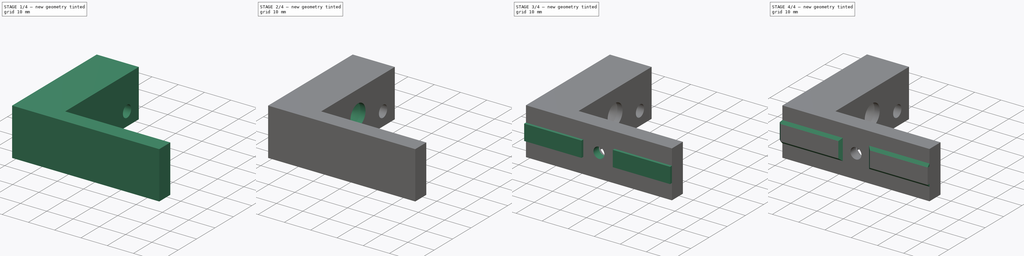
[diagram: build sequence overview — one tinted view per stage of 4, left to right]
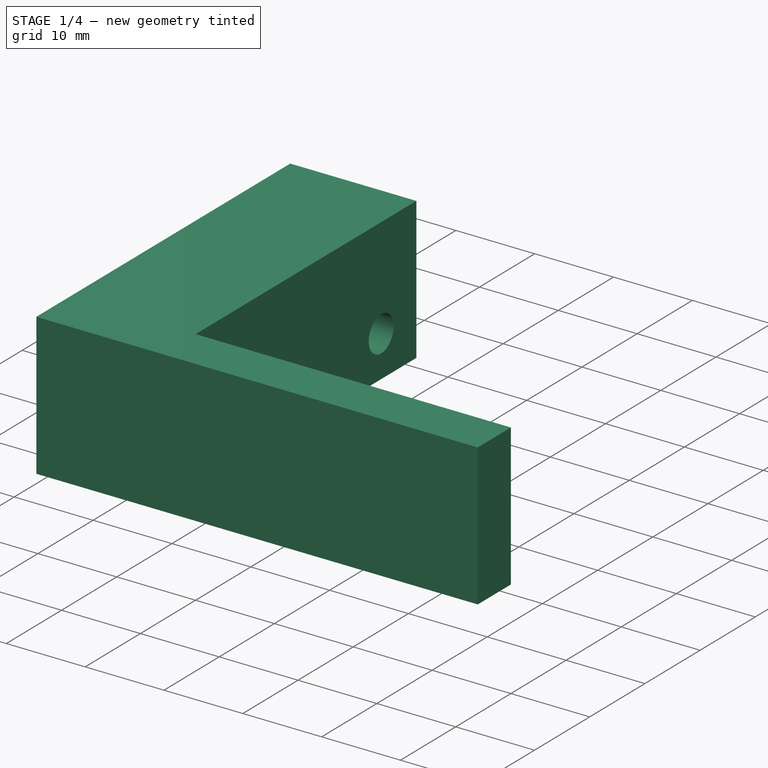
[diagram: stage 1 of 4 — iso view after this stage's code; geometry added in this stage tinted green]
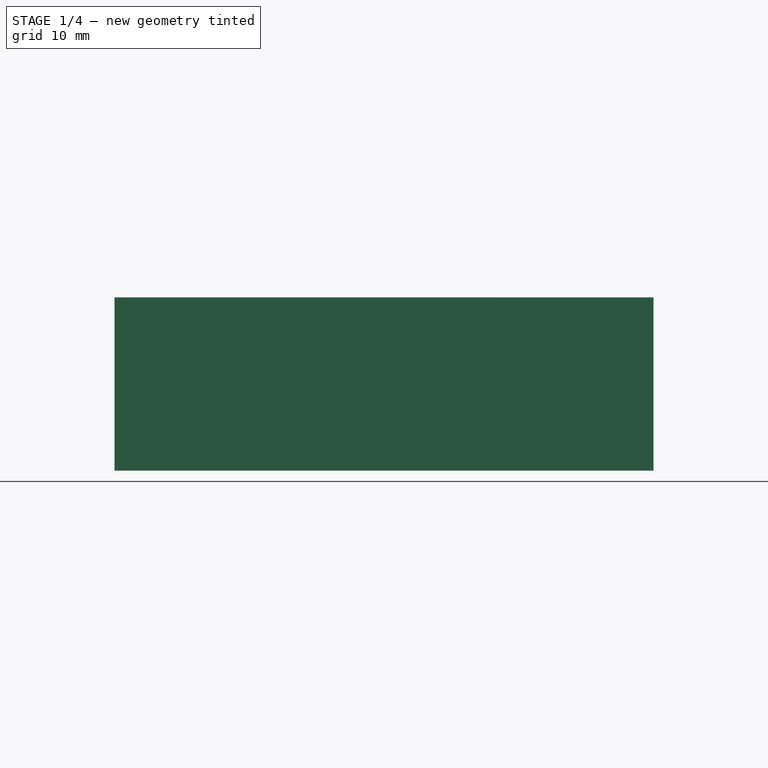
[diagram: stage 1 of 4 — front view after this stage's code; geometry added in this stage tinted green]
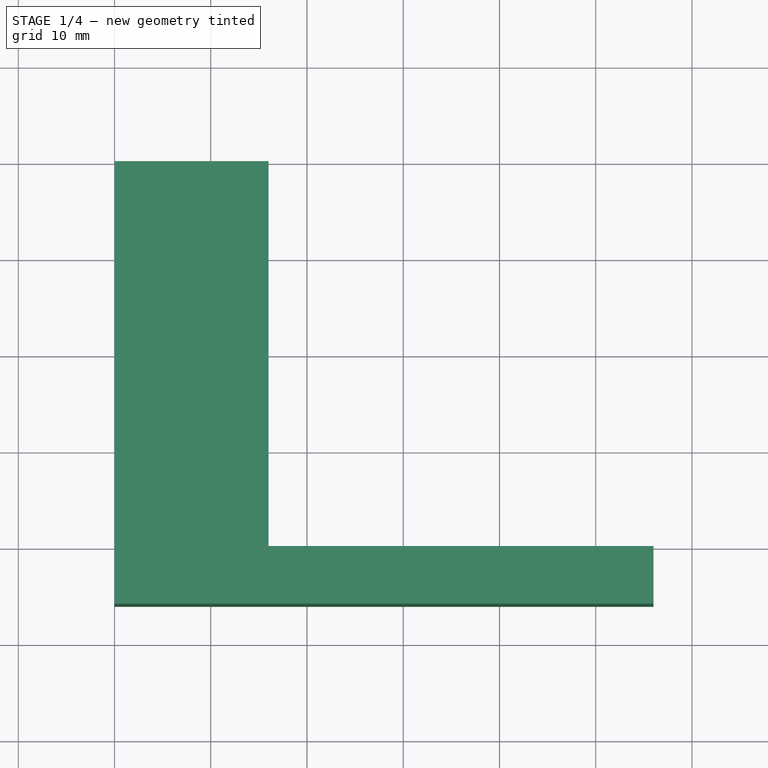
[diagram: stage 1 of 4 — top view after this stage's code; geometry added in this stage tinted green]
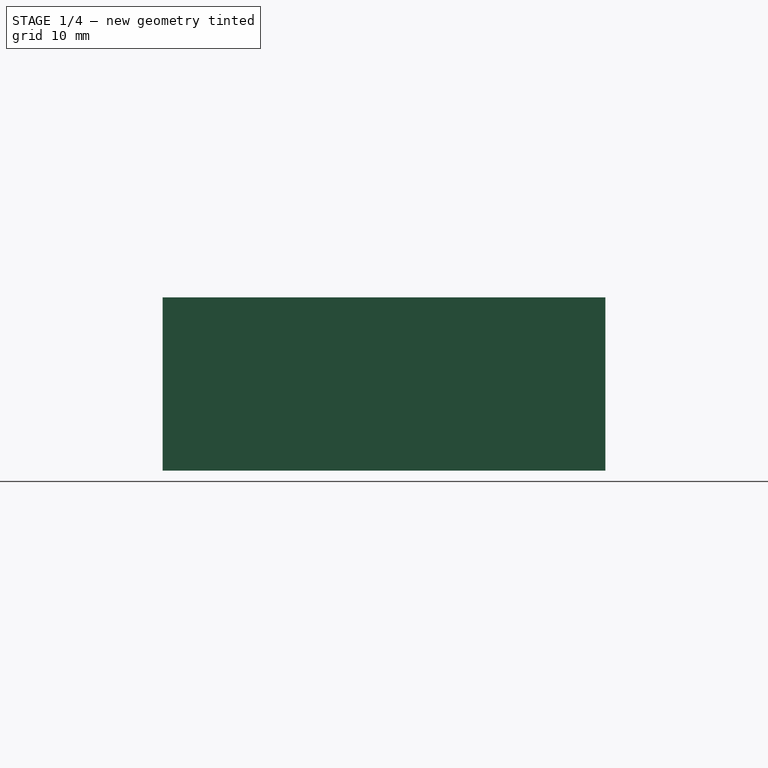
[diagram: stage 1 of 4 — right view after this stage's code; geometry added in this stage tinted green]
FCSTD DOCUMENT  (FreeCAD 0.19R24365 (Git))
Label: ender_5_plus-arm_support v.2
License: All rights reserved
LicenseURL: http://en.wikipedia.org/wiki/All_rights_reserved
objects: Sketcher::SketchObject×8, PartDesign::Pad×4, PartDesign::Pocket×4, PartDesign::Hole×2, Spreadsheet::Sheet×1, PartDesign::Chamfer×1, PartDesign::Body×1
note: 31 computed .brp shape members not serialized (recipe doc carries the construction recipe); baked Part::Feature solids carry a one-line shape summary decoded from their .brp

FEATURE [Sketcher::SketchObject] Sketch
  FullyConstrained = true
  MapMode = 5
  Placement = pos=(0,0,0) rot=(0.57735,0.57735,0.57735;2.0944rad)
  Support = -> [YZ_Plane]
  expr: Constraints[8] = Spreadsheet.base_llargada
  sketch-geometry (4):
    g0: LineSegment StartX=-20 StartY=9 StartZ=0 EndX=20 EndY=9 EndZ=0
    g1: LineSegment StartX=20 StartY=9 StartZ=0 EndX=20 EndY=-9 EndZ=0
    g2: LineSegment StartX=20 StartY=-9 StartZ=0 EndX=-20 EndY=-9 EndZ=0
    g3: LineSegment StartX=-20 StartY=-9 StartZ=0 EndX=-20 EndY=9 EndZ=0
  constraints (11):
    c: Coincident(g0,g1)
    c: Coincident(g1,g2)
    c: Coincident(g2,g3)
    c: Coincident(g3,g0)
    c: Horizontal(g0)
    c: Horizontal(g2)
    c: Vertical(g1)
    c: Vertical(g3)
    c: DistanceX(g0,g0) = 40
    c: Symmetric(g0,g1,g-1)
    c: DistanceY(g1,g1) = 18
FEATURE [PartDesign::Pad] Pad
  Direction = (1,1,1)
  Length = 16
  Length2 = 100
  Placement = pos=(0,0,0) rot=(0.57735,0.57735,0.57735;2.0944rad)
  Profile = -> Sketch
  Type = 0
  expr: Length = Spreadsheet.base_amplada + Spreadsheet.base_prolongacio
FEATURE [Sketcher::SketchObject] Sketch001
  FullyConstrained = true
  MapMode = 5
  Placement = pos=(16,-7.1e-15,5.3e-15) rot=(0.57735,0.57735,0.57735;2.0944rad)
  Support = -> [Pad]
  expr: Constraints[3] = Spreadsheet.forat_separacio
  expr: Constraints[4] = 1.7 - 4 - 1.5
  expr: Constraints[0] = Spreadsheet.forat_inserts
  sketch-geometry (2):
    g0: Circle CenterX=-13.625 CenterY=-3.8 CenterZ=0 NormalX=0 NormalY=0 NormalZ=1 AngleXU=0 Radius=2.25
    g1: Circle CenterX=13.625 CenterY=-3.8 CenterZ=0 NormalX=0 NormalY=0 NormalZ=1 AngleXU=0 Radius=2.25
  constraints (5):
    c: Diameter(g0) = 4.5
    c: Equal(g0,g1)
    c: Symmetric(g0,g1,g-2)
    c: DistanceX(g0,g1) = 27.25
    c: DistanceY(g-1,g0) = -3.8
FEATURE [PartDesign::Pocket] Pocket
  BaseFeature = -> Pad
  Length = 5
  Length2 = 100
  Placement = pos=(0,0,0) rot=(0.57735,0.57735,0.57735;2.0944rad)
  Profile = -> Sketch001
  Type = 0
FEATURE [Sketcher::SketchObject] Sketch002
  ExternalGeometry = -> [Pocket]
  FullyConstrained = true
  MapMode = 5
  Placement = pos=(-8.9e-15,-20,1.33e-14) rot=(0.57735,0.57735,-0.57735;2.0944rad)
  Support = -> [Pocket]
  expr: Constraints[9] = Spreadsheet.base_llargada + Spreadsheet.base_amplada + Spreadsheet.base_prolongacio
  sketch-geometry (4):
    g0: LineSegment StartX=-9 StartY=0 StartZ=0 EndX=9 EndY=1.24e-14 EndZ=0
    g1: LineSegment StartX=9 StartY=1.24e-14 StartZ=0 EndX=9 EndY=56 EndZ=0
    g2: LineSegment StartX=9 StartY=56 StartZ=0 EndX=-9 EndY=56 EndZ=0
    g3: LineSegment StartX=-9 StartY=56 StartZ=0 EndX=-9 EndY=0 EndZ=0
  constraints (10):
    c: Coincident(g0,g1)
    c: Coincident(g1,g2)
    c: Coincident(g2,g3)
    c: Coincident(g3,g0)
    c: Horizontal(g2)
    c: Vertical(g1)
    c: Vertical(g3)
    c: Coincident(g0,g-4)
    c: Coincident(g0,g-4)
    c: DistanceY(g1,g1) = 56
FEATURE [PartDesign::Pad] Pad001
  BaseFeature = -> Pocket
  Direction = (1,1,1)
  Length = 6
  Length2 = 100
  Placement = pos=(0,0,0) rot=(0.57735,0.57735,0.57735;2.0944rad)
  Profile = -> Sketch002
  Type = 0
  expr: Length = Spreadsheet.base_amplada
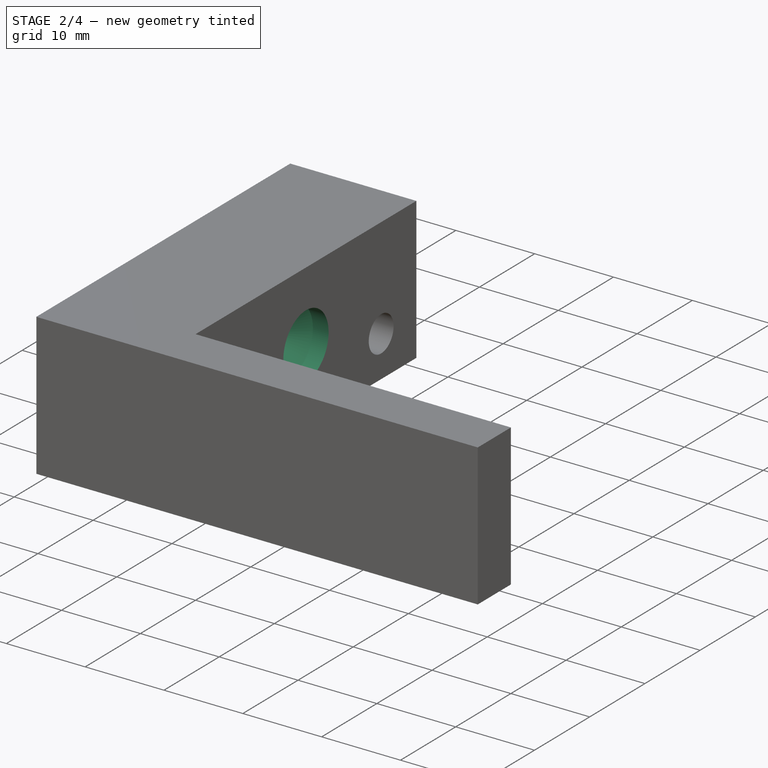
[diagram: stage 2 of 4 — iso view after this stage's code; geometry added in this stage tinted green]
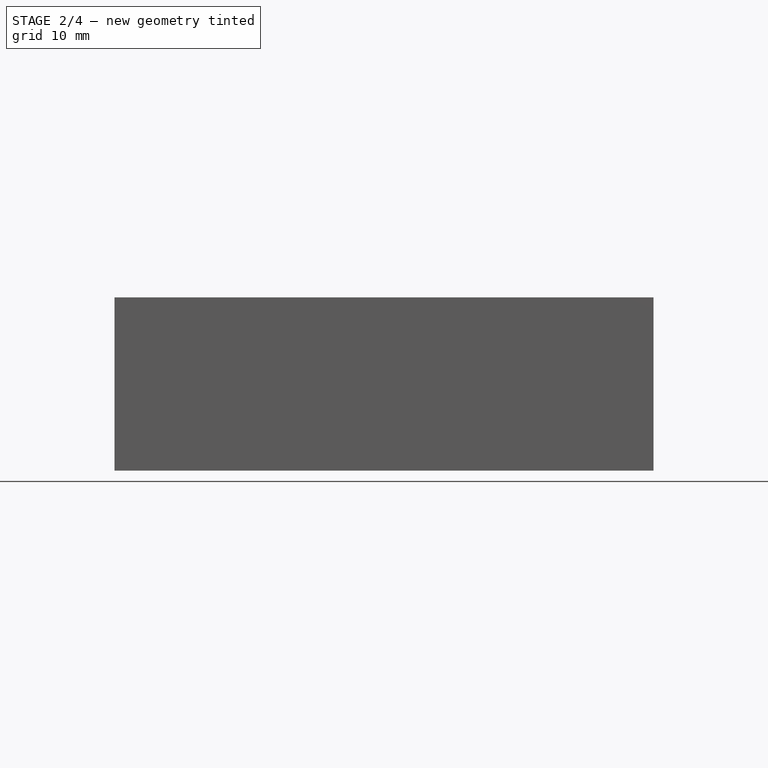
[diagram: stage 2 of 4 — front view after this stage's code; geometry added in this stage tinted green]
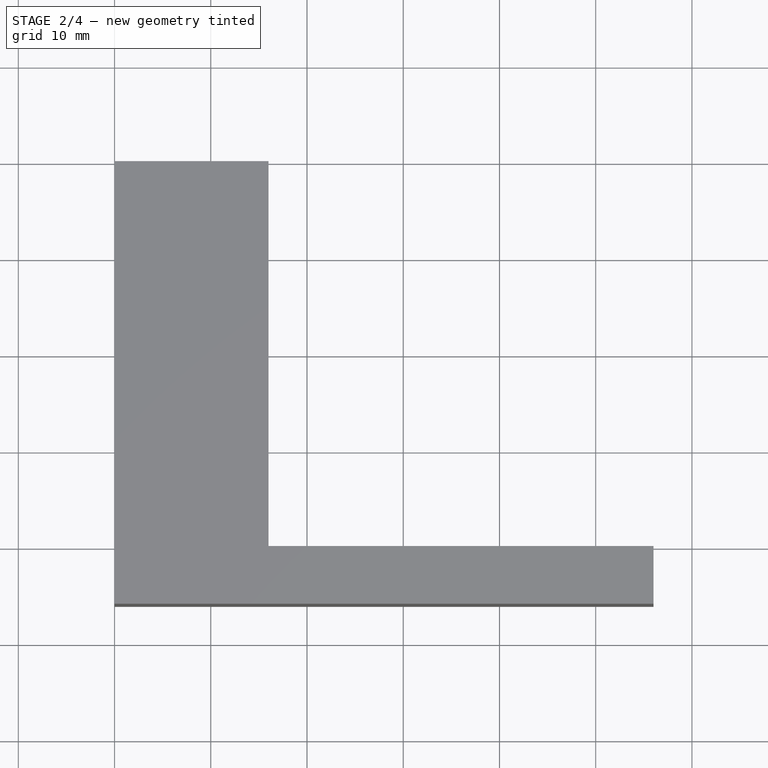
[diagram: stage 2 of 4 — top view after this stage's code; geometry added in this stage tinted green]
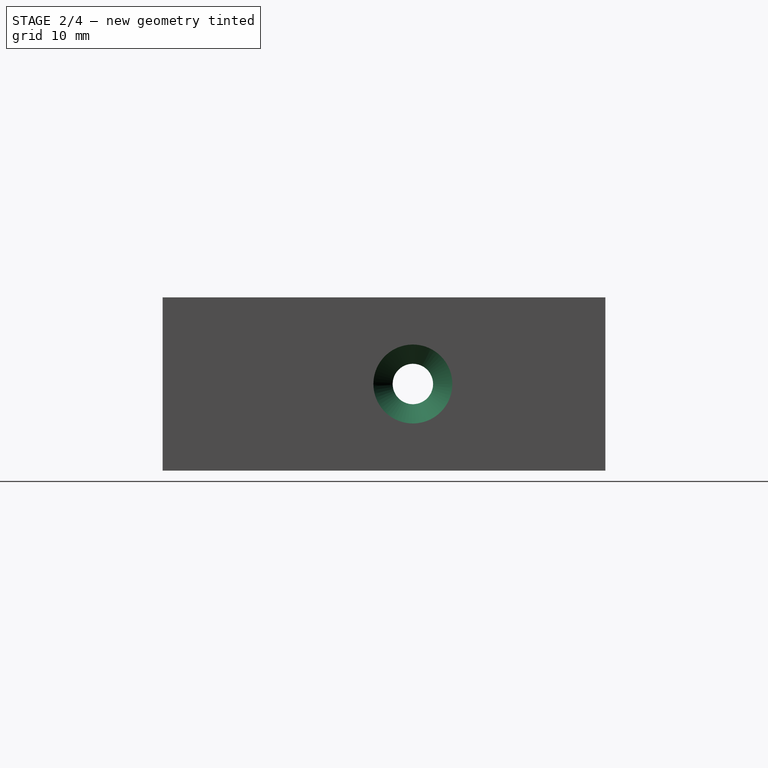
[diagram: stage 2 of 4 — right view after this stage's code; geometry added in this stage tinted green]
FEATURE [Sketcher::SketchObject] Sketch003
  FullyConstrained = true
  MapMode = 5
  Placement = pos=(16,-1.42e-14,8.9e-15) rot=(0.57735,0.57735,0.57735;2.0944rad)
  Support = -> [Pad001]
  expr: Constraints[1] = Spreadsheet.forat_frame + 4
  sketch-geometry (1):
    g0: Circle CenterX=0 CenterY=0 CenterZ=0 NormalX=0 NormalY=0 NormalZ=1 AngleXU=0 Radius=4.1
  constraints (2):
    c: Coincident(g0,g-1)
    c: Diameter(g0) = 8.2
FEATURE [Spreadsheet::Sheet] Spreadsheet
  cells = A2=base_amplada; B2(base_amplada)=6; A3=base_prolongacio; B3(base_prolongacio)=10; A4=forat_frame; B4(forat_frame)=4.2; A5=forat_inserts; B5(forat_inserts)=4.5; A6=base_llargada; B6(base_llargada)=40; A7=base_altura; B7(base_altura)=10.5; A8=forat_separacio; B8(forat_separacio)=27.25
FEATURE [PartDesign::Pocket] Pocket001
  BaseFeature = -> Pad001
  Length = 2
  Length2 = 100
  Placement = pos=(0,0,0) rot=(0.57735,0.57735,0.57735;2.0944rad)
  Profile = -> Sketch003
  Type = 0
FEATURE [PartDesign::Hole] Hole
  BaseFeature = -> Pocket001
  Depth = 25
  DepthType = 1
  Diameter = 4.2
  DrillForDepth = false
  DrillPoint = 1
  DrillPointAngle = 118
  HoleCutCountersinkAngle = 90
  HoleCutCustomValues = false
  HoleCutDepth = 0
  HoleCutDiameter = 8.2
  HoleCutType = 2
  ModelActualThread = false
  Placement = pos=(0,0,0) rot=(0.57735,0.57735,0.57735;2.0944rad)
  Profile = -> Pocket001 [Edge30]
  Tapered = false
  TaperedAngle = 90
  ThreadAngle = 0
  ThreadClass = 0
  ThreadCutOffInner = 0
  ThreadCutOffOuter = 0
  ThreadDirection = 0
  ThreadFit = 0
  ThreadPitch = 0
  ThreadSize = 0
  ThreadType = 0
  Threaded = false
  expr: Diameter = Spreadsheet.forat_frame
  expr: HoleCutDiameter = Spreadsheet.forat_frame + 4
FEATURE [Sketcher::SketchObject] Sketch005
  ExternalGeometry = -> [Hole]
  FullyConstrained = false
  MapMode = 5
  Placement = pos=(-1.78e-14,-20,2.79e-14) rot=(0.57735,0.57735,0.57735;4.18879rad)
  Support = -> [Hole]
  expr: Constraints[1] = Spreadsheet.forat_frame + 4
  sketch-geometry (2):
    g0: LineSegment StartX=19.9488 StartY=28 StartZ=0 EndX=-33.7136 EndY=28 EndZ=0
    g1: Circle CenterX=0 CenterY=28 CenterZ=0 NormalX=0 NormalY=0 NormalZ=1 AngleXU=0 Radius=4.1
  constraints (4):
    c: PointOnObject(g1,g0)
    c: Diameter(g1) = 8.2
    c: PointOnObject(g1,g-2)
    c: Symmetric(g-4,g-3,g0)
FEATURE [PartDesign::Pocket] Pocket002
  BaseFeature = -> Hole
  Length = 1
  Length2 = 100
  Placement = pos=(0,0,0) rot=(0.57735,0.57735,0.57735;2.0944rad)
  Profile = -> Sketch005
  Type = 0
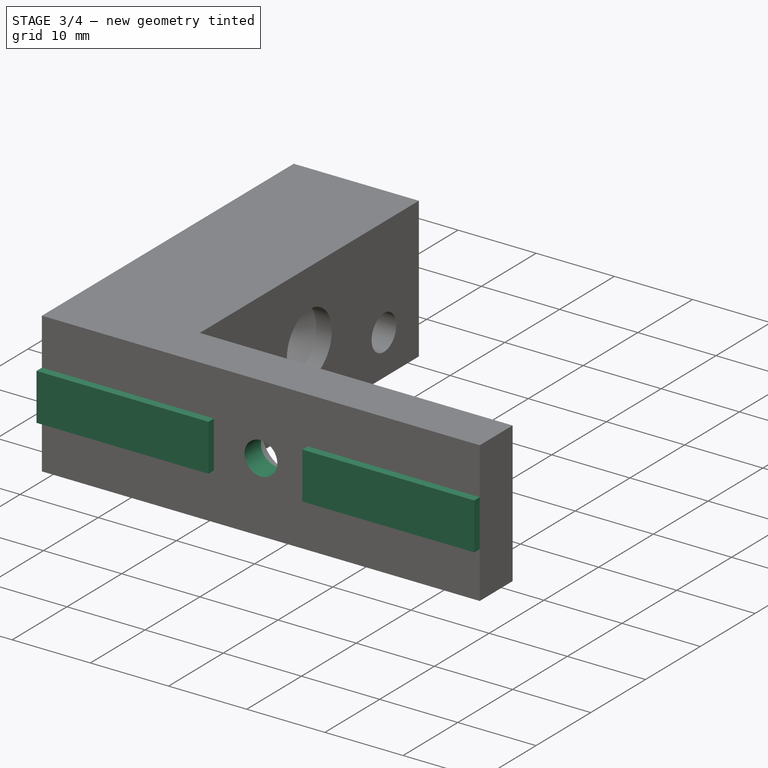
[diagram: stage 3 of 4 — iso view after this stage's code; geometry added in this stage tinted green]
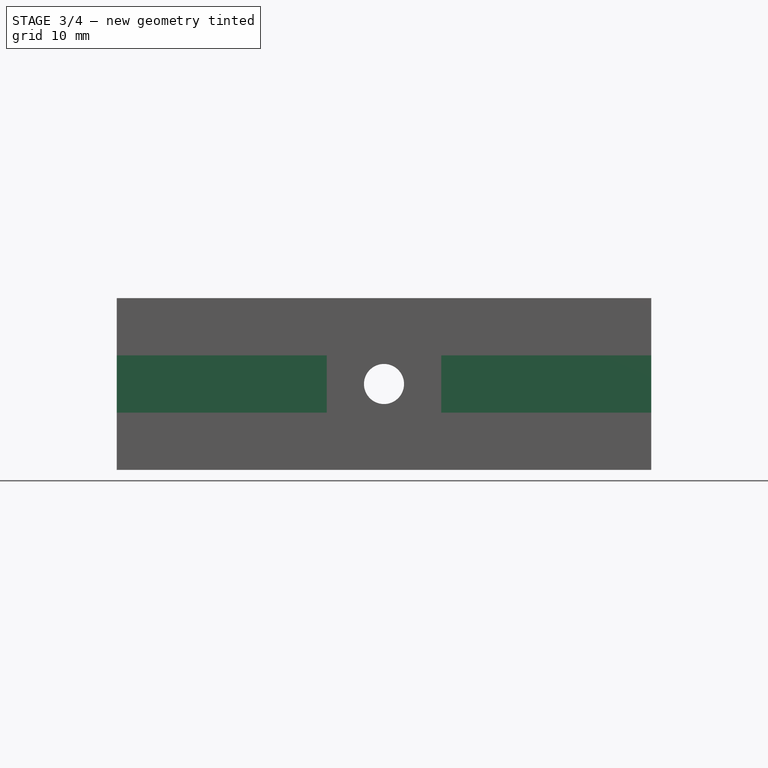
[diagram: stage 3 of 4 — front view after this stage's code; geometry added in this stage tinted green]
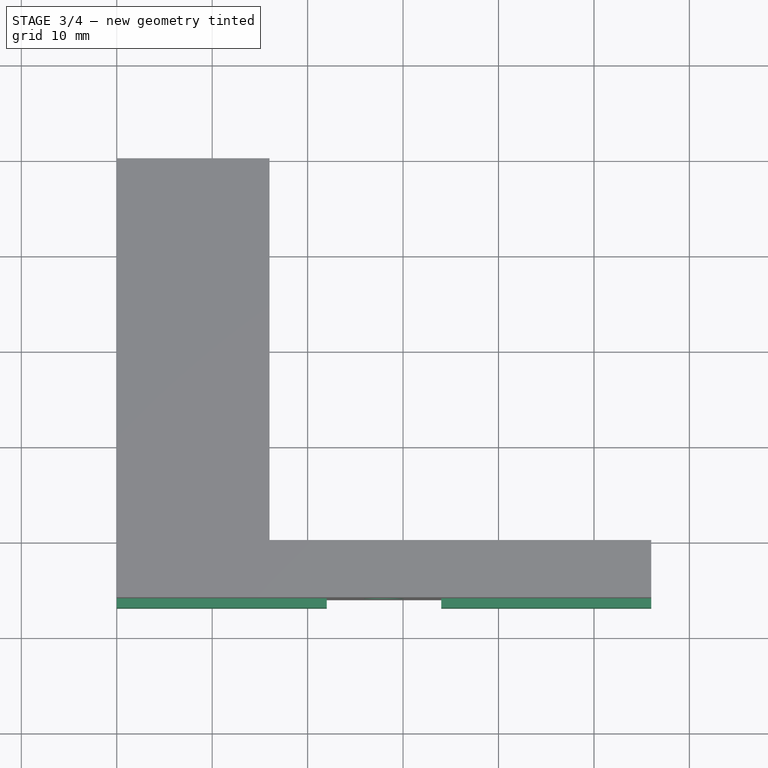
[diagram: stage 3 of 4 — top view after this stage's code; geometry added in this stage tinted green]
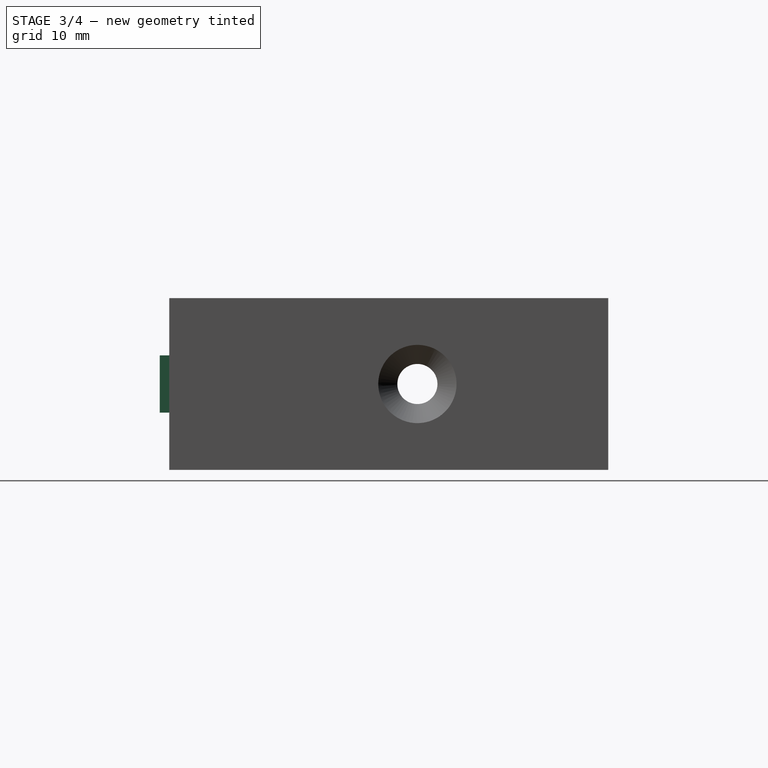
[diagram: stage 3 of 4 — right view after this stage's code; geometry added in this stage tinted green]
FEATURE [PartDesign::Hole] Hole001
  BaseFeature = -> Pocket002
  Depth = 25
  DepthType = 1
  Diameter = 4.2
  DrillForDepth = false
  DrillPoint = 1
  DrillPointAngle = 118
  HoleCutCountersinkAngle = 90
  HoleCutCustomValues = false
  HoleCutDepth = 0
  HoleCutDiameter = 8.2
  HoleCutType = 2
  ModelActualThread = false
  Placement = pos=(0,0,0) rot=(0.57735,0.57735,0.57735;2.0944rad)
  Profile = -> Pocket002 [Edge38]
  Tapered = false
  TaperedAngle = 90
  ThreadAngle = 0
  ThreadClass = 0
  ThreadCutOffInner = 0
  ThreadCutOffOuter = 0
  ThreadDirection = 0
  ThreadFit = 0
  ThreadPitch = 0
  ThreadSize = 0
  ThreadType = 0
  Threaded = false
  expr: Diameter = Spreadsheet.forat_frame
  expr: HoleCutDiameter = Spreadsheet.forat_frame + 4
FEATURE [Sketcher::SketchObject] Sketch006
  ExternalGeometry = -> [Hole001]
  FullyConstrained = true
  MapMode = 5
  Placement = pos=(-2.31e-14,-26,5.36e-14) rot=(0.57735,0.57735,-0.57735;2.0944rad)
  Support = -> [Hole001]
  sketch-geometry (9):
    g0: LineSegment StartX=-3 StartY=22 StartZ=0 EndX=3 EndY=22 EndZ=0
    g1: LineSegment StartX=3 StartY=22 StartZ=0 EndX=3 EndY=0 EndZ=0
    g2: LineSegment StartX=3 StartY=0 StartZ=0 EndX=-3 EndY=0 EndZ=0
    g3: LineSegment StartX=-3 StartY=0 StartZ=0 EndX=-3 EndY=22 EndZ=0
    g4: LineSegment StartX=-3 StartY=56 StartZ=0 EndX=3 EndY=56 EndZ=0
    g5: LineSegment StartX=3 StartY=56 StartZ=0 EndX=3 EndY=34 EndZ=0
    g6: LineSegment StartX=3 StartY=34 StartZ=0 EndX=-3 EndY=34 EndZ=0
    g7: LineSegment StartX=-3 StartY=34 StartZ=0 EndX=-3 EndY=56 EndZ=0
    g8: LineSegment StartX=-6e-16 StartY=34 StartZ=0 EndX=-6e-16 EndY=22 EndZ=0
  constraints (26):
    c: Coincident(g0,g1)
    c: Coincident(g1,g2)
    c: Coincident(g2,g3)
    c: Coincident(g3,g0)
    c: Horizontal(g0)
    c: Horizontal(g2)
    c: Vertical(g1)
    c: Vertical(g3)
    c: Symmetric(g2,g1,g-1)
    c: DistanceX(g0,g0) = 6
    c: Coincident(g4,g5)
    c: Coincident(g5,g6)
    c: Coincident(g6,g7)
    c: Coincident(g7,g4)
    c: Horizontal(g6)
    c: Vertical(g5)
    c: Vertical(g7)
    c: PointOnObject(g4,g-3)
    c: Equal(g0,g4)
    c: PointOnObject(g8,g6)
    c: PointOnObject(g8,g0)
    c: Vertical(g8)
    c: Symmetric(g8,g8,g-4)
    c: DistanceY(g8,g8) = 12
    c: Vertical(g0,g6)
    c: PointOnObject(g4,g-3)
FEATURE [PartDesign::Pad] Pad002
  BaseFeature = -> Hole001
  Direction = (1,1,1)
  Length = 1
  Length2 = 100
  Placement = pos=(0,0,0) rot=(0.57735,0.57735,0.57735;2.0944rad)
  Profile = -> Sketch006
  Type = 0
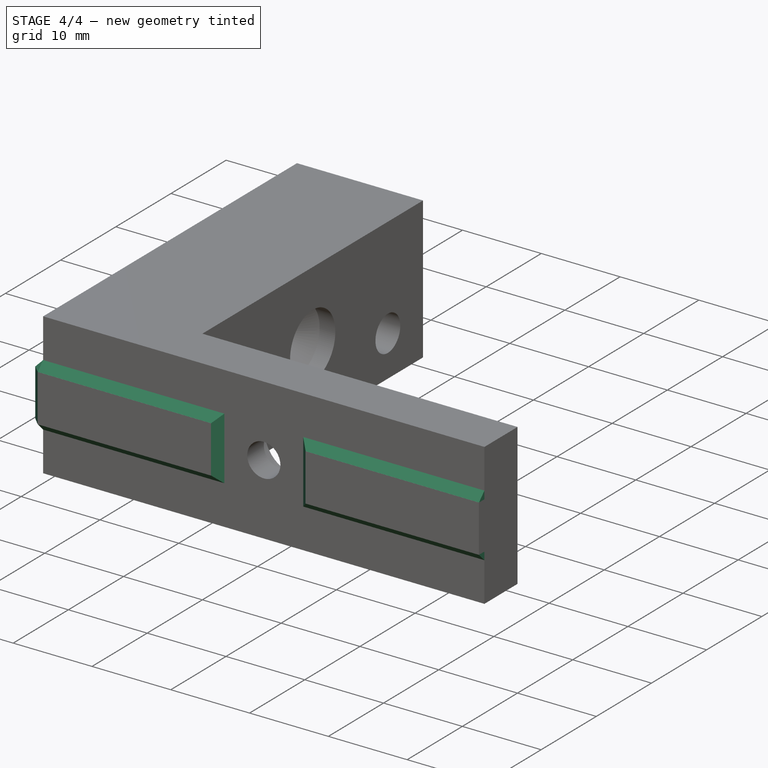
[diagram: stage 4 of 4 — iso view after this stage's code; geometry added in this stage tinted green]
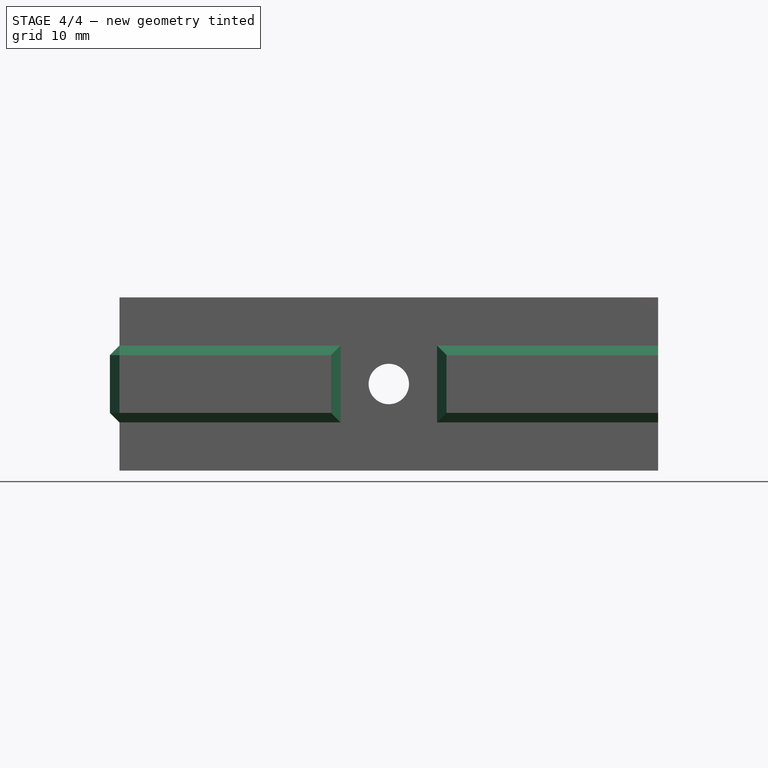
[diagram: stage 4 of 4 — front view after this stage's code; geometry added in this stage tinted green]
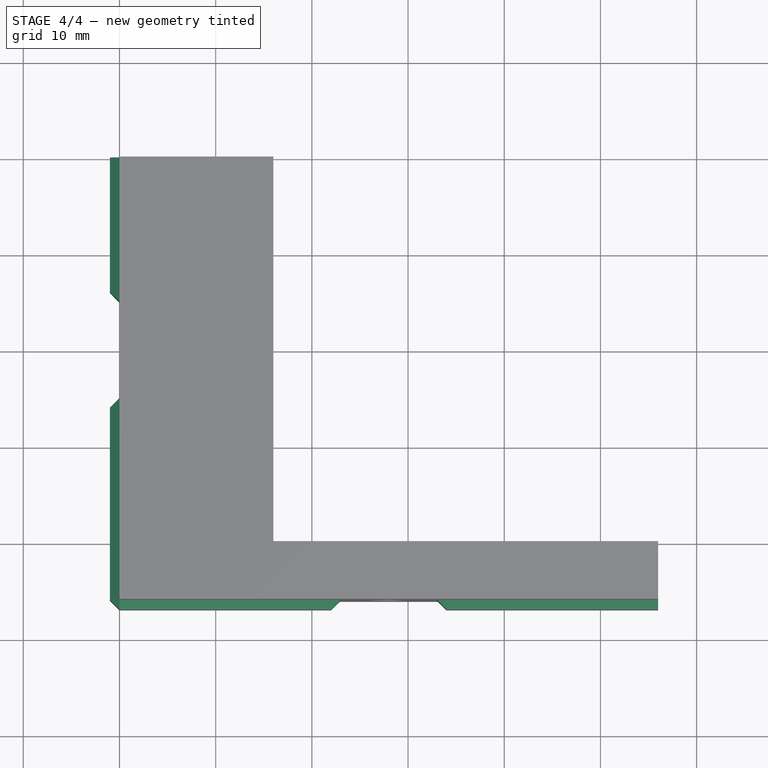
[diagram: stage 4 of 4 — top view after this stage's code; geometry added in this stage tinted green]
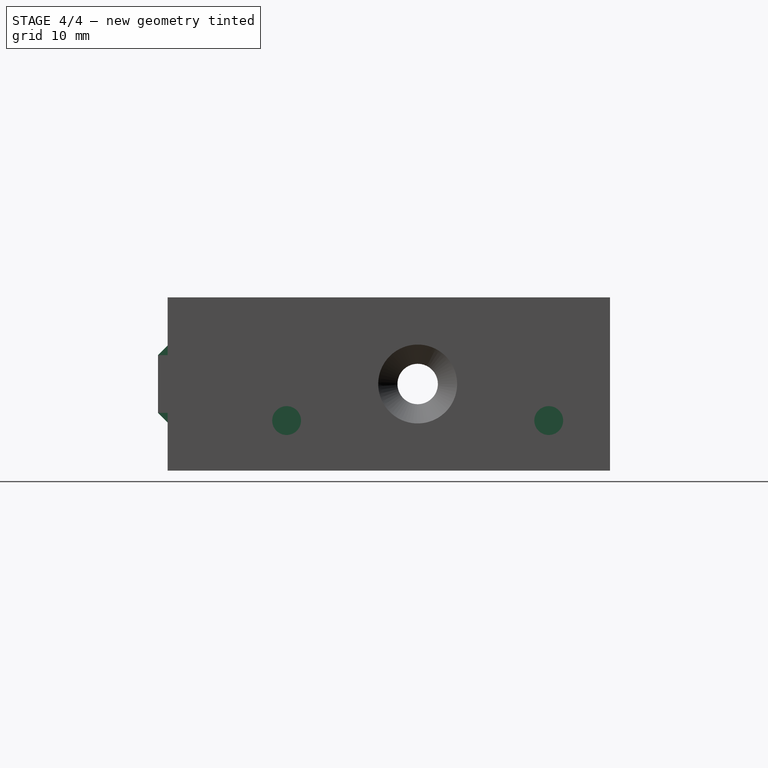
[diagram: stage 4 of 4 — right view after this stage's code; geometry added in this stage tinted green]
FEATURE [Sketcher::SketchObject] Sketch007
  ExternalGeometry = -> [Pad002]
  FullyConstrained = true
  MapMode = 5
  Placement = pos=(2.29e-14,0,0) rot=(-0.57735,-0.57735,0.57735;2.0944rad)
  Support = -> [Pad002]
  sketch-geometry (9):
    g0: LineSegment StartX=-26 StartY=-3 StartZ=0 EndX=-6 EndY=-3 EndZ=0
    g1: LineSegment StartX=-6 StartY=-3 StartZ=0 EndX=-6 EndY=3 EndZ=0
    g2: LineSegment StartX=-6 StartY=3 StartZ=0 EndX=-26 EndY=3 EndZ=0
    g3: LineSegment StartX=-26 StartY=3 StartZ=0 EndX=-26 EndY=-3 EndZ=0
    g4: LineSegment StartX=20 StartY=3 StartZ=0 EndX=6 EndY=3 EndZ=0
    g5: LineSegment StartX=6 StartY=3 StartZ=0 EndX=6 EndY=-3 EndZ=0
    g6: LineSegment StartX=6 StartY=-3 StartZ=0 EndX=20 EndY=-3 EndZ=0
    g7: LineSegment StartX=20 StartY=-3 StartZ=0 EndX=20 EndY=3 EndZ=0
    g8: LineSegment StartX=-6 StartY=0 StartZ=0 EndX=6 EndY=0 EndZ=0
  constraints (25):
    c: Coincident(g0,g1)
    c: Coincident(g1,g2)
    c: Coincident(g2,g3)
    c: Coincident(g3,g0)
    c: Horizontal(g0)
    c: Horizontal(g2)
    c: Vertical(g1)
    c: Coincident(g4,g5)
    c: Coincident(g5,g6)
    c: Coincident(g6,g7)
    c: Coincident(g7,g4)
    c: Horizontal(g4)
    c: Horizontal(g6)
    c: Vertical(g5)
    c: Vertical(g7)
    c: PointOnObject(g4,g-4)
    c: Equal(g1,g5)
    c: PointOnObject(g8,g1)
    c: PointOnObject(g8,g5)
    c: Horizontal(g8)
    c: Symmetric(g8,g8,g-1)
    c: DistanceX(g8,g8) = 12
    c: Horizontal(g4,g1)
    c: Coincident(g-5,g2)
    c: Coincident(g0,g-6)
FEATURE [PartDesign::Pad] Pad003
  BaseFeature = -> Pad002
  Direction = (1,1,1)
  Length = 1
  Length2 = 100
  Placement = pos=(0,0,0) rot=(0.57735,0.57735,0.57735;2.0944rad)
  Profile = -> Sketch007
  Type = 0
FEATURE [PartDesign::Chamfer] Chamfer
  Angle = 45
  Base = -> Pad003 [Edge22,Edge15,Edge20,Edge17,Edge57,Edge34,Edge45,Edge43,Edge40,Edge39,Edge44,Edge38,Edge21,Edge16,Edge93]
  BaseFeature = -> Pad003
  ChamferType = 0
  FlipDirection = false
  Placement = pos=(0,0,0) rot=(0.57735,0.57735,0.57735;2.0944rad)
  Size = 0.99
  Size2 = 1
  SupportTransform = false
FEATURE [Sketcher::SketchObject] Sketch008
  ExternalGeometry = -> [Chamfer]
  FullyConstrained = true
  MapMode = 5
  Placement = pos=(11,-2.24e-14,1.48e-14) rot=(0.57735,0.57735,0.57735;2.0944rad)
  Support = -> [Chamfer]
  sketch-geometry (2):
    g0: Circle CenterX=13.625 CenterY=-3.8 CenterZ=0 NormalX=0 NormalY=0 NormalZ=1 AngleXU=0 Radius=1.5
    g1: Circle CenterX=-13.625 CenterY=-3.8 CenterZ=0 NormalX=0 NormalY=0 NormalZ=1 AngleXU=0 Radius=1.5
  constraints (4):
    c: Coincident(g0,g-3)
    c: Coincident(g1,g-4)
    c: Diameter(g1) = 3
    c: Equal(g1,g0)
FEATURE [PartDesign::Pocket] Pocket003
  BaseFeature = -> Chamfer
  Length = 3
  Length2 = 100
  Placement = pos=(0,0,0) rot=(0.57735,0.57735,0.57735;2.0944rad)
  Profile = -> Sketch008
  Type = 0
FEATURE [PartDesign::Body] Body
  Group = -> [Sketch,Pad,Sketch001,Pocket,Sketch002,Pad001,Sketch003,Pocket001,Hole,Sketch005,Pocket002,Hole001,Sketch006,Pad002,Sketch007,Pad003,Chamfer,Sketch008,Pocket003]
  Origin = -> Origin
  Tip = -> Pocket003
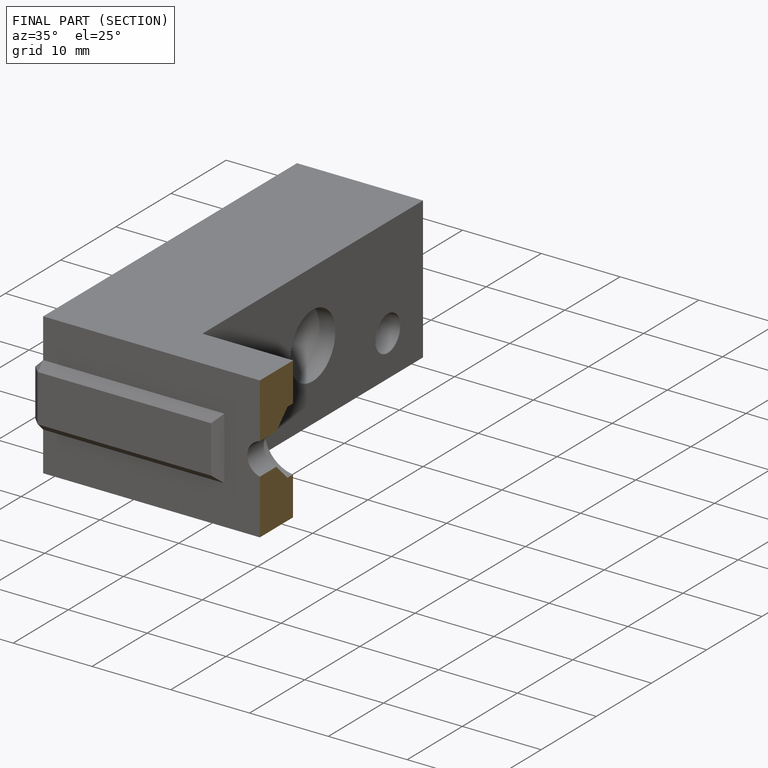
[diagram: finished part — half-section view (interior)]
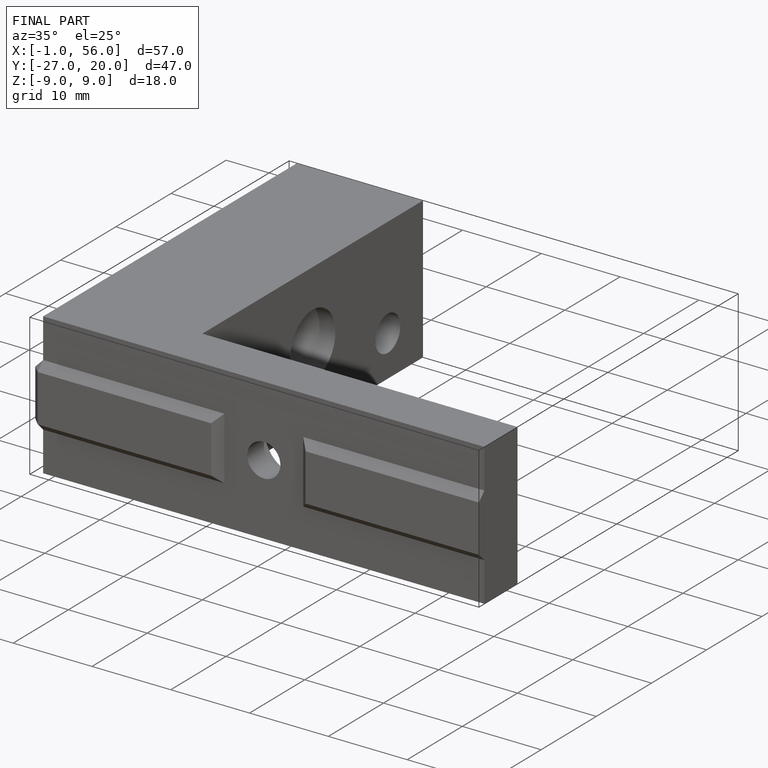
[diagram: finished part — iso view with bounding-box wireframe]
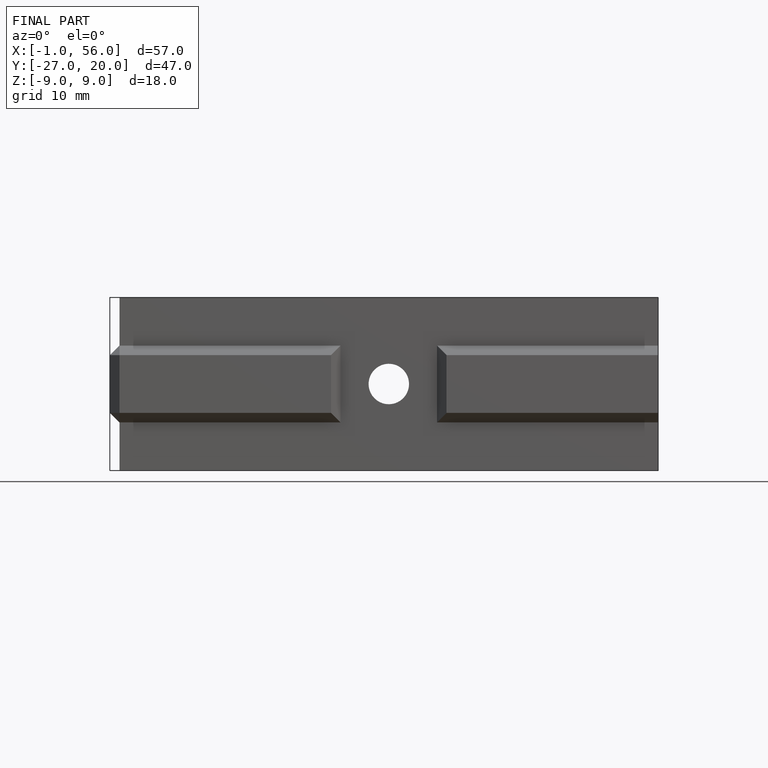
[diagram: finished part — front view with bounding-box wireframe]
